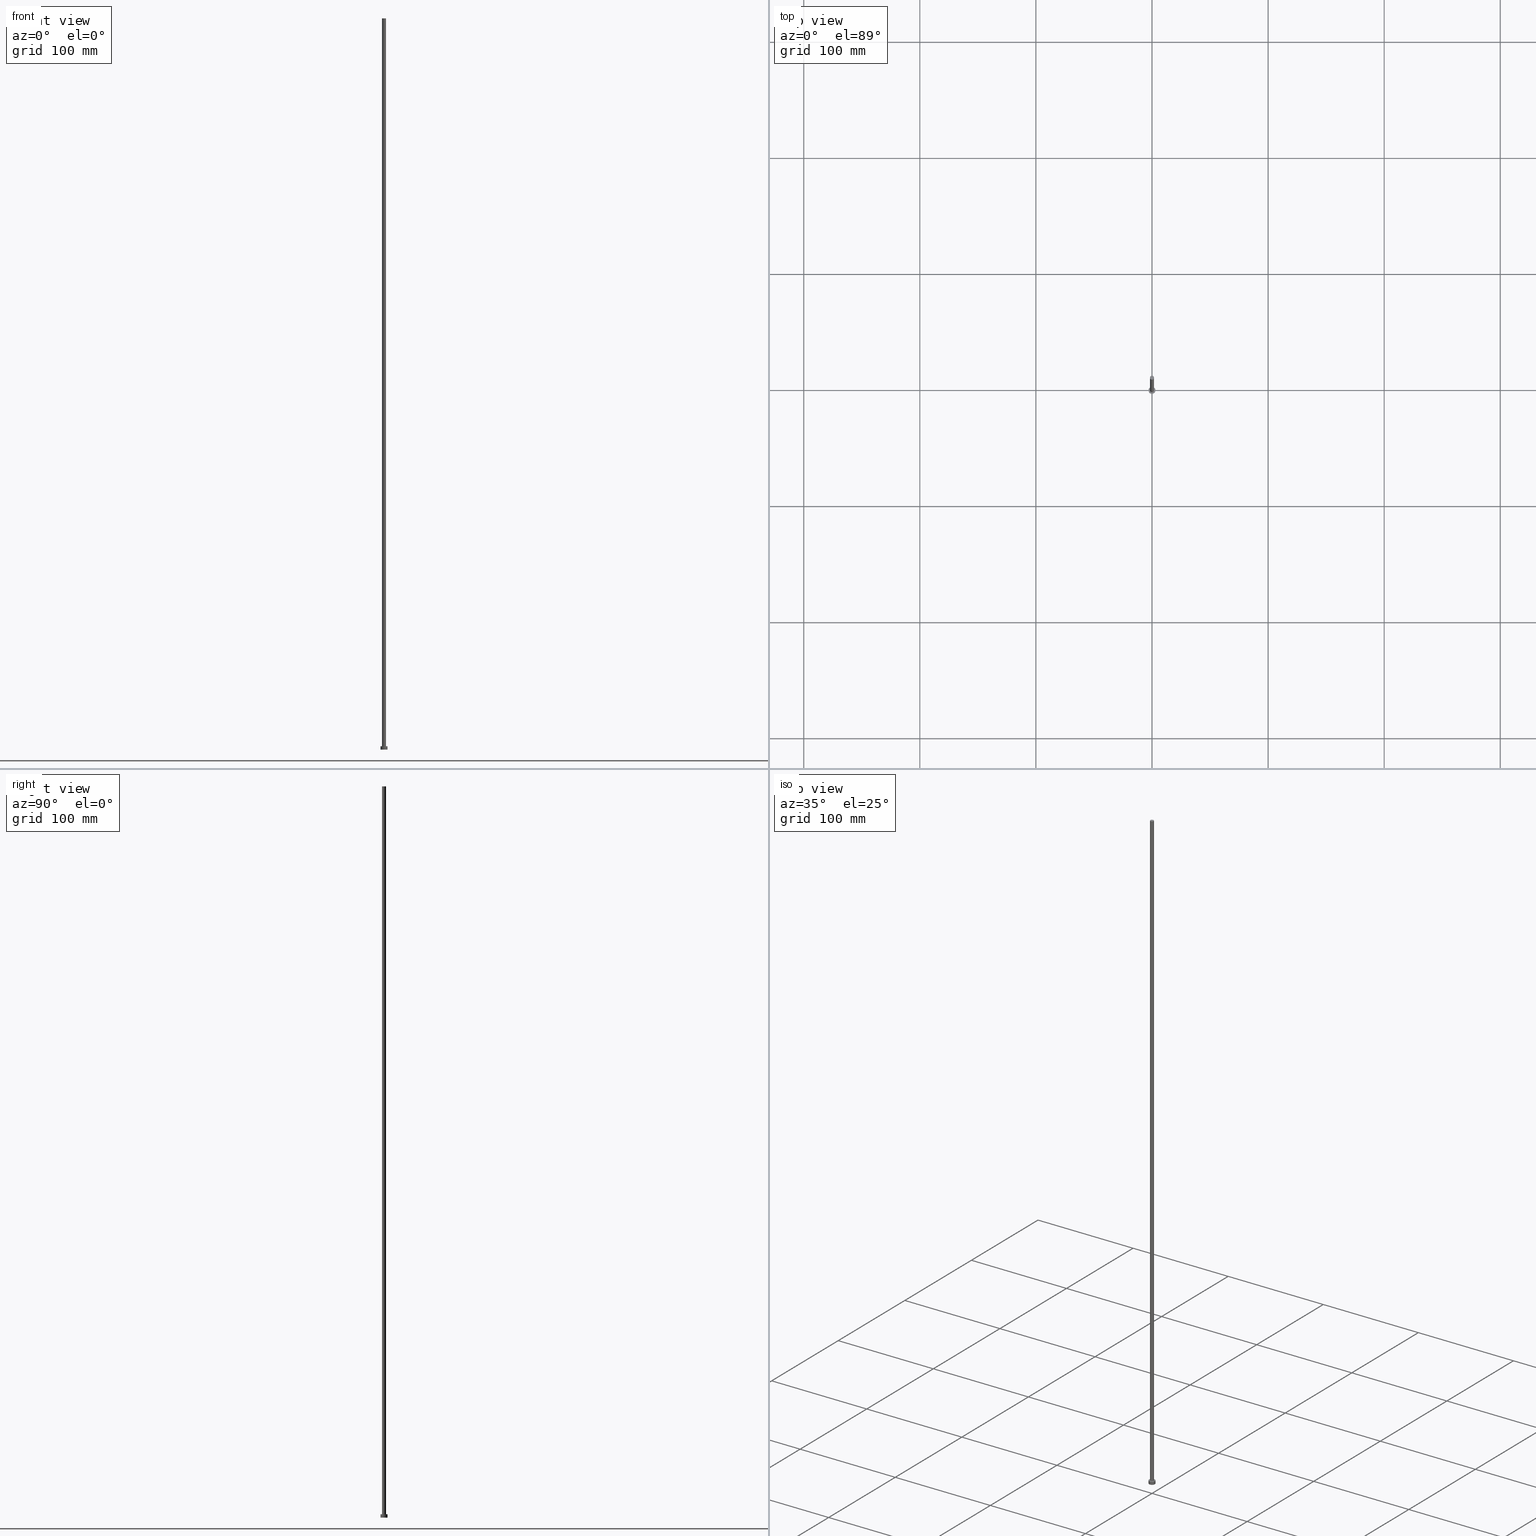
[diagram: canonical four-view strip — front | top / right | iso, engineering-drawing reading convention]
A machine part, canonical four-view strip (front | top / right | iso — engineering-drawing reading convention). The complete STEP part file that produces these views, byte-faithful:
ISO-10303-21;
HEADER;
FILE_DESCRIPTION (( 'STEP AP203' ),
    '1' );
FILE_NAME ('f7a0.STEP',
    '2023-02-13T16:38:14',
    ( '' ),
    ( '' ),
    'SwSTEP 2.0',
    'SolidWorks 2019',
    '' );
FILE_SCHEMA (( 'CONFIG_CONTROL_DESIGN' ));
ENDSEC;

DATA;
#1 = CIRCLE ( 'NONE', #173, 3.000000000000000444 ) ;
#2 = ADVANCED_FACE ( 'NONE', ( #37 ), #223, .F. ) ;
#3 = APPROVAL_DATE_TIME ( #40, #102 ) ;
#4 = AXIS2_PLACEMENT_3D ( 'NONE', #211, #49, #209 ) ;
#5 = COORDINATED_UNIVERSAL_TIME_OFFSET ( 1, 0, .AHEAD. ) ;
#6 = PERSON_AND_ORGANIZATION_ROLE ( 'design_supplier' ) ;
#7 = COORDINATED_UNIVERSAL_TIME_OFFSET ( 1, 0, .AHEAD. ) ;
#8 = APPROVAL ( #38, 'NEUR�EN�' ) ;
#9 = CIRCLE ( 'NONE', #92, 1.750000000000000000 ) ;
#10 = ADVANCED_FACE ( 'NONE', ( #107 ), #67, .T. ) ;
#11 = ORIENTED_EDGE ( 'NONE', *, *, #71, .T. ) ;
#12 = DIRECTION ( 'NONE',  ( 1.000000000000000000, 0.000000000000000000, 0.000000000000000000 ) ) ;
#13 = ORIENTED_EDGE ( 'NONE', *, *, #27, .F. ) ;
#14 = EDGE_LOOP ( 'NONE', ( #220, #128, #69, #11 ) ) ;
#15 = DIRECTION ( 'NONE',  ( 1.000000000000000000, 0.000000000000000000, 0.000000000000000000 ) ) ;
#16 = DIRECTION ( 'NONE',  ( -1.000000000000000000, 0.000000000000000000, 0.000000000000000000 ) ) ;
#17 = CARTESIAN_POINT ( 'NONE',  ( 0.000000000000000000, 0.000000000000000000, 0.000000000000000000 ) ) ;
#18 = APPROVAL_PERSON_ORGANIZATION ( #187, #54, #237 ) ;
#19 = APPROVAL_PERSON_ORGANIZATION ( #129, #8, #152 ) ;
#20 = APPLICATION_CONTEXT ( 'configuration controlled 3d designs of mechanical parts and assemblies' ) ;
#21 = CC_DESIGN_DATE_AND_TIME_ASSIGNMENT ( #132, #95, ( #222 ) ) ;
#22 = MECHANICAL_CONTEXT ( 'NONE', #20, 'mechanical' ) ;
#23 = EDGE_CURVE ( 'NONE', #57, #194, #1, .T. ) ;
#24 = FACE_OUTER_BOUND ( 'NONE', #252, .T. ) ;
#25 = APPROVAL_PERSON_ORGANIZATION ( #210, #102, #52 ) ;
#26 = ORIENTED_EDGE ( 'NONE', *, *, #33, .F. ) ;
#27 = EDGE_CURVE ( 'NONE', #103, #159, #9, .T. ) ;
#28 = PRODUCT_RELATED_PRODUCT_CATEGORY ( 'detail', '', ( #214 ) ) ;
#29 = DIRECTION ( 'NONE',  ( -1.000000000000000000, 0.000000000000000000, 0.000000000000000000 ) ) ;
#30 = CYLINDRICAL_SURFACE ( 'NONE', #186, 3.000000000000000444 ) ;
#31 = VECTOR ( 'NONE', #238, 1000.000000000000000 ) ;
#32 = CARTESIAN_POINT ( 'NONE',  ( -3.000000000000000444, 0.000000000000000000, 3.000000000000000000 ) ) ;
#33 = EDGE_CURVE ( 'NONE', #83, #138, #197, .T. ) ;
#34 = PERSON_AND_ORGANIZATION_ROLE ( 'creator' ) ;
#35 = CYLINDRICAL_SURFACE ( 'NONE', #120, 1.750000000000000000 ) ;
#36 = EDGE_LOOP ( 'NONE', ( #229, #178, #42, #44 ) ) ;
#37 = FACE_OUTER_BOUND ( 'NONE', #119, .T. ) ;
#38 = APPROVAL_STATUS ( 'not_yet_approved' ) ;
#39 = LOCAL_TIME ( 17, 38, 14.00000000000000000, #111 ) ;
#40 = DATE_AND_TIME ( #193, #39 ) ;
#41 = LINE ( 'NONE', #161, #139 ) ;
#42 = ORIENTED_EDGE ( 'NONE', *, *, #23, .T. ) ;
#43 = VECTOR ( 'NONE', #140, 1000.000000000000000 ) ;
#44 = ORIENTED_EDGE ( 'NONE', *, *, #232, .F. ) ;
#45 = DIRECTION ( 'NONE',  ( -0.000000000000000000, -0.000000000000000000, -1.000000000000000000 ) ) ;
#46 = CARTESIAN_POINT ( 'NONE',  ( 0.000000000000000000, 0.000000000000000000, 3.000000000000000000 ) ) ;
#47 = DIRECTION ( 'NONE',  ( 0.000000000000000000, 0.000000000000000000, 1.000000000000000000 ) ) ;
#48 = DATE_TIME_ROLE ( 'creation_date' ) ;
#49 = DIRECTION ( 'NONE',  ( 0.000000000000000000, 0.000000000000000000, 1.000000000000000000 ) ) ;
#50 = CARTESIAN_POINT ( 'NONE',  ( 0.000000000000000000, 0.000000000000000000, 630.0000000000000000 ) ) ;
#51 = EDGE_CURVE ( 'NONE', #159, #103, #124, .T. ) ;
#52 = APPROVAL_ROLE ( '' ) ;
#53 = CALENDAR_DATE ( 2023, 13, 2 ) ;
#54 = APPROVAL ( #149, 'NEUR�EN�' ) ;
#55 = CARTESIAN_POINT ( 'NONE',  ( -3.000000000000000444, 0.000000000000000000, 0.000000000000000000 ) ) ;
#56 = CARTESIAN_POINT ( 'NONE',  ( -3.000000000000000444, 0.000000000000000000, 3.000000000000000000 ) ) ;
#57 = VERTEX_POINT ( 'NONE', #207 ) ;
#58 = CARTESIAN_POINT ( 'NONE',  ( 1.750000000000000000, 2.143131898507868297E-16, 630.0000000000000000 ) ) ;
#59 = ORIENTED_EDGE ( 'NONE', *, *, #182, .T. ) ;
#60 = LINE ( 'NONE', #61, #96 ) ;
#61 = CARTESIAN_POINT ( 'NONE',  ( -1.750000000000000000, 0.000000000000000000, 630.0000000000000000 ) ) ;
#62 = DIRECTION ( 'NONE',  ( -0.000000000000000000, -0.000000000000000000, -1.000000000000000000 ) ) ;
#63 = ORIENTED_EDGE ( 'NONE', *, *, #232, .T. ) ;
#64 = DIRECTION ( 'NONE',  ( 1.000000000000000000, 0.000000000000000000, 0.000000000000000000 ) ) ;
#65 = DIRECTION ( 'NONE',  ( 0.000000000000000000, 0.000000000000000000, 1.000000000000000000 ) ) ;
#66 = CC_DESIGN_DATE_AND_TIME_ASSIGNMENT ( #87, #48, ( #215 ) ) ;
#67 = CYLINDRICAL_SURFACE ( 'NONE', #167, 3.000000000000000444 ) ;
#68 = COORDINATED_UNIVERSAL_TIME_OFFSET ( 1, 0, .AHEAD. ) ;
#69 = ORIENTED_EDGE ( 'NONE', *, *, #219, .T. ) ;
#70 = SHAPE_DEFINITION_REPRESENTATION ( #172, #203 ) ;
#71 = EDGE_CURVE ( 'NONE', #218, #180, #176, .T. ) ;
#72 = DIRECTION ( 'NONE',  ( 0.000000000000000000, 0.000000000000000000, 1.000000000000000000 ) ) ;
#73 = DATE_AND_TIME ( #53, #188 ) ;
#74 = PERSON_AND_ORGANIZATION ( #82, #136 ) ;
#75 = PRODUCT_DEFINITION_FORMATION_WITH_SPECIFIED_SOURCE ( 'LIBOVOLN�', '', #214, .NOT_KNOWN. ) ;
#76 = CC_DESIGN_PERSON_AND_ORGANIZATION_ASSIGNMENT ( #148, #97, ( #222 ) ) ;
#77 = CARTESIAN_POINT ( 'NONE',  ( 1.750000000000000000, 2.143131898507868297E-16, 3.000000000000000000 ) ) ;
#78 = LINE ( 'NONE', #56, #31 ) ;
#79 = DIRECTION ( 'NONE',  ( -0.000000000000000000, -0.000000000000000000, -1.000000000000000000 ) ) ;
#80 = LOCAL_TIME ( 17, 38, 14.00000000000000000, #68 ) ;
#81 = ORIENTED_EDGE ( 'NONE', *, *, #146, .F. ) ;
#82 = PERSON ( 'NEUR�EN�', 'NEUR�EN�', 'NEUR�EN�', ('NEUR�EN�'), ('NEUR�EN�'), ('NEUR�EN�') ) ;
#83 = VERTEX_POINT ( 'NONE', #32 ) ;
#84 = DIRECTION ( 'NONE',  ( 1.000000000000000000, 0.000000000000000000, 0.000000000000000000 ) ) ;
#85 = ADVANCED_FACE ( 'NONE', ( #227 ), #233, .T. ) ;
#86 = ORIENTED_EDGE ( 'NONE', *, *, #27, .T. ) ;
#87 = DATE_AND_TIME ( #166, #80 ) ;
#88 = AXIS2_PLACEMENT_3D ( 'NONE', #123, #106, #202 ) ;
#89 = EDGE_LOOP ( 'NONE', ( #101, #196 ) ) ;
#90 = APPLICATION_CONTEXT ( 'configuration controlled 3d designs of mechanical parts and assemblies' ) ;
#91 = PERSON_AND_ORGANIZATION_ROLE ( 'creator' ) ;
#92 = AXIS2_PLACEMENT_3D ( 'NONE', #126, #200, #204 ) ;
#93 = DIRECTION ( 'NONE',  ( 0.000000000000000000, 0.000000000000000000, 1.000000000000000000 ) ) ;
#94 = DIRECTION ( 'NONE',  ( 0.000000000000000000, 0.000000000000000000, 1.000000000000000000 ) ) ;
#95 = DATE_TIME_ROLE ( 'classification_date' ) ;
#96 = VECTOR ( 'NONE', #147, 1000.000000000000000 ) ;
#97 = PERSON_AND_ORGANIZATION_ROLE ( 'classification_officer' ) ;
#98 = DIRECTION ( 'NONE',  ( -1.000000000000000000, 0.000000000000000000, 0.000000000000000000 ) ) ;
#99 = ADVANCED_FACE ( 'NONE', ( #24 ), #30, .T. ) ;
#100 = EDGE_LOOP ( 'NONE', ( #162, #86 ) ) ;
#101 = ORIENTED_EDGE ( 'NONE', *, *, #71, .F. ) ;
#102 = APPROVAL ( #174, 'NEUR�EN�' ) ;
#103 = VERTEX_POINT ( 'NONE', #58 ) ;
#104 = DIRECTION ( 'NONE',  ( 0.000000000000000000, 0.000000000000000000, 1.000000000000000000 ) ) ;
#105 = AXIS2_PLACEMENT_3D ( 'NONE', #122, #253, #240 ) ;
#106 = DIRECTION ( 'NONE',  ( 0.000000000000000000, 0.000000000000000000, 1.000000000000000000 ) ) ;
#107 = FACE_OUTER_BOUND ( 'NONE', #36, .T. ) ;
#108 = APPLICATION_PROTOCOL_DEFINITION ( 'international standard', 'config_control_design', 1994, #90 ) ;
#109 = CC_DESIGN_SECURITY_CLASSIFICATION ( #222, ( #75 ) ) ;
#110 = CC_DESIGN_PERSON_AND_ORGANIZATION_ASSIGNMENT ( #231, #91, ( #215 ) ) ;
#111 = COORDINATED_UNIVERSAL_TIME_OFFSET ( 1, 0, .AHEAD. ) ;
#112 = CLOSED_SHELL ( 'NONE', ( #145, #10, #99, #241, #2, #135, #85 ) ) ;
#113 = APPLICATION_PROTOCOL_DEFINITION ( 'international standard', 'config_control_design', 1994, #20 ) ;
#114 = CC_DESIGN_PERSON_AND_ORGANIZATION_ASSIGNMENT ( #153, #34, ( #75 ) ) ;
#115 = PLANE ( 'NONE',  #164 ) ;
#116 = AXIS2_PLACEMENT_3D ( 'NONE', #242, #62, #98 ) ;
#117 = SECURITY_CLASSIFICATION_LEVEL ( 'unclassified' ) ;
#118 = CC_DESIGN_APPROVAL ( #102, ( #222 ) ) ;
#119 = EDGE_LOOP ( 'NONE', ( #221, #177 ) ) ;
#120 = AXIS2_PLACEMENT_3D ( 'NONE', #217, #199, #29 ) ;
#121 = FACE_OUTER_BOUND ( 'NONE', #248, .T. ) ;
#122 = CARTESIAN_POINT ( 'NONE',  ( 0.000000000000000000, 0.000000000000000000, 3.000000000000000000 ) ) ;
#123 = CARTESIAN_POINT ( 'NONE',  ( 0.000000000000000000, 0.000000000000000000, 0.000000000000000000 ) ) ;
#124 = CIRCLE ( 'NONE', #142, 1.750000000000000000 ) ;
#125 = CIRCLE ( 'NONE', #4, 3.000000000000000444 ) ;
#126 = CARTESIAN_POINT ( 'NONE',  ( 0.000000000000000000, 0.000000000000000000, 630.0000000000000000 ) ) ;
#127 = PERSON_AND_ORGANIZATION ( #82, #136 ) ;
#128 = ORIENTED_EDGE ( 'NONE', *, *, #51, .F. ) ;
#129 = PERSON_AND_ORGANIZATION ( #82, #136 ) ;
#130 = LOCAL_TIME ( 17, 38, 14.00000000000000000, #151 ) ;
#131 =( NAMED_UNIT ( * ) SI_UNIT ( $, .STERADIAN. ) SOLID_ANGLE_UNIT ( ) );
#132 = DATE_AND_TIME ( #239, #130 ) ;
#133 = AXIS2_PLACEMENT_3D ( 'NONE', #46, #104, #84 ) ;
#134 = APPROVAL_DATE_TIME ( #212, #8 ) ;
#135 = ADVANCED_FACE ( 'NONE', ( #158 ), #179, .T. ) ;
#136 = ORGANIZATION ( 'NEUR�EN�', 'NEUR�EN�', '' ) ;
#137 = ORIENTED_EDGE ( 'NONE', *, *, #219, .F. ) ;
#138 = VERTEX_POINT ( 'NONE', #244 ) ;
#139 = VECTOR ( 'NONE', #45, 1000.000000000000000 ) ;
#140 = DIRECTION ( 'NONE',  ( -0.000000000000000000, -0.000000000000000000, -1.000000000000000000 ) ) ;
#141 = DIRECTION ( 'NONE',  ( -0.000000000000000000, -0.000000000000000000, -1.000000000000000000 ) ) ;
#142 = AXIS2_PLACEMENT_3D ( 'NONE', #230, #47, #225 ) ;
#143 = ORIENTED_EDGE ( 'NONE', *, *, #195, .T. ) ;
#144 = CARTESIAN_POINT ( 'NONE',  ( 0.000000000000000000, 0.000000000000000000, 3.000000000000000000 ) ) ;
#145 = ADVANCED_FACE ( 'NONE', ( #121 ), #35, .T. ) ;
#146 = EDGE_CURVE ( 'NONE', #138, #57, #224, .T. ) ;
#147 = DIRECTION ( 'NONE',  ( -0.000000000000000000, -0.000000000000000000, -1.000000000000000000 ) ) ;
#148 = PERSON_AND_ORGANIZATION ( #82, #136 ) ;
#149 = APPROVAL_STATUS ( 'not_yet_approved' ) ;
#150 = CC_DESIGN_APPROVAL ( #54, ( #215 ) ) ;
#151 = COORDINATED_UNIVERSAL_TIME_OFFSET ( 1, 0, .AHEAD. ) ;
#152 = APPROVAL_ROLE ( '' ) ;
#153 = PERSON_AND_ORGANIZATION ( #82, #136 ) ;
#154 = CIRCLE ( 'NONE', #198, 1.750000000000000000 ) ;
#155 = CC_DESIGN_PERSON_AND_ORGANIZATION_ASSIGNMENT ( #127, #206, ( #214 ) ) ;
#156 = AXIS2_PLACEMENT_3D ( 'NONE', #50, #93, #235 ) ;
#157 = EDGE_LOOP ( 'NONE', ( #205, #59 ) ) ;
#158 = FACE_OUTER_BOUND ( 'NONE', #14, .T. ) ;
#159 = VERTEX_POINT ( 'NONE', #201 ) ;
#160 = EDGE_CURVE ( 'NONE', #103, #180, #41, .T. ) ;
#161 = CARTESIAN_POINT ( 'NONE',  ( 1.750000000000000000, 2.143131898507868297E-16, 630.0000000000000000 ) ) ;
#162 = ORIENTED_EDGE ( 'NONE', *, *, #51, .T. ) ;
#163 = CARTESIAN_POINT ( 'NONE',  ( 0.000000000000000000, 0.000000000000000000, 3.000000000000000000 ) ) ;
#164 = AXIS2_PLACEMENT_3D ( 'NONE', #191, #94, #168 ) ;
#165 = DIRECTION ( 'NONE',  ( 0.000000000000000000, 0.000000000000000000, 1.000000000000000000 ) ) ;
#166 = CALENDAR_DATE ( 2023, 13, 2 ) ;
#167 = AXIS2_PLACEMENT_3D ( 'NONE', #185, #141, #184 ) ;
#168 = DIRECTION ( 'NONE',  ( 1.000000000000000000, 0.000000000000000000, -0.000000000000000000 ) ) ;
#169 = CALENDAR_DATE ( 2023, 13, 2 ) ;
#170 = CARTESIAN_POINT ( 'NONE',  ( 0.000000000000000000, 0.000000000000000000, 0.000000000000000000 ) ) ;
#171 =( NAMED_UNIT ( * ) PLANE_ANGLE_UNIT ( ) SI_UNIT ( $, .RADIAN. ) );
#172 = PRODUCT_DEFINITION_SHAPE ( 'NONE', 'NONE',  #215 ) ;
#173 = AXIS2_PLACEMENT_3D ( 'NONE', #17, #165, #15 ) ;
#174 = APPROVAL_STATUS ( 'not_yet_approved' ) ;
#175 = ORIENTED_EDGE ( 'NONE', *, *, #255, .T. ) ;
#176 = CIRCLE ( 'NONE', #133, 1.750000000000000000 ) ;
#177 = ORIENTED_EDGE ( 'NONE', *, *, #23, .F. ) ;
#178 = ORIENTED_EDGE ( 'NONE', *, *, #146, .T. ) ;
#179 = CYLINDRICAL_SURFACE ( 'NONE', #116, 1.750000000000000000 ) ;
#180 = VERTEX_POINT ( 'NONE', #77 ) ;
#181 = CARTESIAN_POINT ( 'NONE',  ( 0.000000000000000000, 0.000000000000000000, 3.000000000000000000 ) ) ;
#182 = EDGE_CURVE ( 'NONE', #138, #83, #245, .T. ) ;
#183 = CARTESIAN_POINT ( 'NONE',  ( 3.000000000000000444, 3.673940397442060361E-16, 3.000000000000000000 ) ) ;
#184 = DIRECTION ( 'NONE',  ( -1.000000000000000000, 0.000000000000000000, 0.000000000000000000 ) ) ;
#185 = CARTESIAN_POINT ( 'NONE',  ( 0.000000000000000000, 0.000000000000000000, 3.000000000000000000 ) ) ;
#186 = AXIS2_PLACEMENT_3D ( 'NONE', #181, #79, #16 ) ;
#187 = PERSON_AND_ORGANIZATION ( #82, #136 ) ;
#188 = LOCAL_TIME ( 17, 38, 14.00000000000000000, #7 ) ;
#189 = LOCAL_TIME ( 17, 38, 14.00000000000000000, #5 ) ;
#190 =( LENGTH_UNIT ( ) NAMED_UNIT ( * ) SI_UNIT ( .MILLI., .METRE. ) );
#191 = CARTESIAN_POINT ( 'NONE',  ( 0.000000000000000000, 0.000000000000000000, 3.000000000000000000 ) ) ;
#192 = CC_DESIGN_APPROVAL ( #8, ( #75 ) ) ;
#193 = CALENDAR_DATE ( 2023, 13, 2 ) ;
#194 = VERTEX_POINT ( 'NONE', #55 ) ;
#195 = EDGE_CURVE ( 'NONE', #180, #218, #154, .T. ) ;
#196 = ORIENTED_EDGE ( 'NONE', *, *, #195, .F. ) ;
#197 = CIRCLE ( 'NONE', #243, 3.000000000000000444 ) ;
#198 = AXIS2_PLACEMENT_3D ( 'NONE', #163, #65, #12 ) ;
#199 = DIRECTION ( 'NONE',  ( -0.000000000000000000, -0.000000000000000000, -1.000000000000000000 ) ) ;
#200 = DIRECTION ( 'NONE',  ( 0.000000000000000000, 0.000000000000000000, 1.000000000000000000 ) ) ;
#201 = CARTESIAN_POINT ( 'NONE',  ( -1.750000000000000000, 0.000000000000000000, 630.0000000000000000 ) ) ;
#202 = DIRECTION ( 'NONE',  ( 1.000000000000000000, 0.000000000000000000, -0.000000000000000000 ) ) ;
#203 = ADVANCED_BREP_SHAPE_REPRESENTATION ( 'f7a0', ( #249, #213 ), #228 ) ;
#204 = DIRECTION ( 'NONE',  ( 1.000000000000000000, 0.000000000000000000, 0.000000000000000000 ) ) ;
#205 = ORIENTED_EDGE ( 'NONE', *, *, #33, .T. ) ;
#206 = PERSON_AND_ORGANIZATION_ROLE ( 'design_owner' ) ;
#207 = CARTESIAN_POINT ( 'NONE',  ( 3.000000000000000444, 3.673940397442060361E-16, 0.000000000000000000 ) ) ;
#208 = APPROVAL_DATE_TIME ( #73, #54 ) ;
#209 = DIRECTION ( 'NONE',  ( 1.000000000000000000, 0.000000000000000000, 0.000000000000000000 ) ) ;
#210 = PERSON_AND_ORGANIZATION ( #82, #136 ) ;
#211 = CARTESIAN_POINT ( 'NONE',  ( 0.000000000000000000, 0.000000000000000000, 0.000000000000000000 ) ) ;
#212 = DATE_AND_TIME ( #169, #189 ) ;
#213 = AXIS2_PLACEMENT_3D ( 'NONE', #170, #72, #234 ) ;
#214 = PRODUCT ( 'f7a0', 'f7a0', '', ( #22 ) ) ;
#215 = PRODUCT_DEFINITION ( 'NEZN�M�', '', #75, #226 ) ;
#216 = FACE_OUTER_BOUND ( 'NONE', #157, .T. ) ;
#217 = CARTESIAN_POINT ( 'NONE',  ( 0.000000000000000000, 0.000000000000000000, 630.0000000000000000 ) ) ;
#218 = VERTEX_POINT ( 'NONE', #247 ) ;
#219 = EDGE_CURVE ( 'NONE', #159, #218, #60, .T. ) ;
#220 = ORIENTED_EDGE ( 'NONE', *, *, #160, .F. ) ;
#221 = ORIENTED_EDGE ( 'NONE', *, *, #255, .F. ) ;
#222 = SECURITY_CLASSIFICATION ( '', '', #117 ) ;
#223 = PLANE ( 'NONE',  #88 ) ;
#224 = LINE ( 'NONE', #183, #43 ) ;
#225 = DIRECTION ( 'NONE',  ( 1.000000000000000000, 0.000000000000000000, 0.000000000000000000 ) ) ;
#226 = DESIGN_CONTEXT ( 'detailed design', #90, 'design' ) ;
#227 = FACE_OUTER_BOUND ( 'NONE', #100, .T. ) ;
#228 =( GEOMETRIC_REPRESENTATION_CONTEXT ( 3 ) GLOBAL_UNCERTAINTY_ASSIGNED_CONTEXT ( ( #251 ) ) GLOBAL_UNIT_ASSIGNED_CONTEXT ( ( #190, #171, #131 ) ) REPRESENTATION_CONTEXT ( 'NONE', 'WORKASPACE' ) );
#229 = ORIENTED_EDGE ( 'NONE', *, *, #182, .F. ) ;
#230 = CARTESIAN_POINT ( 'NONE',  ( 0.000000000000000000, 0.000000000000000000, 630.0000000000000000 ) ) ;
#231 = PERSON_AND_ORGANIZATION ( #82, #136 ) ;
#232 = EDGE_CURVE ( 'NONE', #83, #194, #78, .T. ) ;
#233 = PLANE ( 'NONE',  #156 ) ;
#234 = DIRECTION ( 'NONE',  ( 1.000000000000000000, 0.000000000000000000, 0.000000000000000000 ) ) ;
#235 = DIRECTION ( 'NONE',  ( 1.000000000000000000, 0.000000000000000000, -0.000000000000000000 ) ) ;
#236 = FACE_BOUND ( 'NONE', #89, .T. ) ;
#237 = APPROVAL_ROLE ( '' ) ;
#238 = DIRECTION ( 'NONE',  ( -0.000000000000000000, -0.000000000000000000, -1.000000000000000000 ) ) ;
#239 = CALENDAR_DATE ( 2023, 13, 2 ) ;
#240 = DIRECTION ( 'NONE',  ( 1.000000000000000000, 0.000000000000000000, 0.000000000000000000 ) ) ;
#241 = ADVANCED_FACE ( 'NONE', ( #236, #216 ), #115, .T. ) ;
#242 = CARTESIAN_POINT ( 'NONE',  ( 0.000000000000000000, 0.000000000000000000, 630.0000000000000000 ) ) ;
#243 = AXIS2_PLACEMENT_3D ( 'NONE', #144, #254, #64 ) ;
#244 = CARTESIAN_POINT ( 'NONE',  ( 3.000000000000000444, 3.673940397442060361E-16, 3.000000000000000000 ) ) ;
#245 = CIRCLE ( 'NONE', #105, 3.000000000000000444 ) ;
#246 = CC_DESIGN_PERSON_AND_ORGANIZATION_ASSIGNMENT ( #74, #6, ( #75 ) ) ;
#247 = CARTESIAN_POINT ( 'NONE',  ( -1.750000000000000000, 0.000000000000000000, 3.000000000000000000 ) ) ;
#248 = EDGE_LOOP ( 'NONE', ( #13, #250, #143, #137 ) ) ;
#249 = MANIFOLD_SOLID_BREP ( 'P�idat vysunut�m3', #112 ) ;
#250 = ORIENTED_EDGE ( 'NONE', *, *, #160, .T. ) ;
#251 = UNCERTAINTY_MEASURE_WITH_UNIT (LENGTH_MEASURE( 1.000000000000000082E-05 ), #190, 'distance_accuracy_value', 'NONE');
#252 = EDGE_LOOP ( 'NONE', ( #81, #26, #63, #175 ) ) ;
#253 = DIRECTION ( 'NONE',  ( 0.000000000000000000, 0.000000000000000000, 1.000000000000000000 ) ) ;
#254 = DIRECTION ( 'NONE',  ( 0.000000000000000000, 0.000000000000000000, 1.000000000000000000 ) ) ;
#255 = EDGE_CURVE ( 'NONE', #194, #57, #125, .T. ) ;
ENDSEC;
END-ISO-10303-21;
